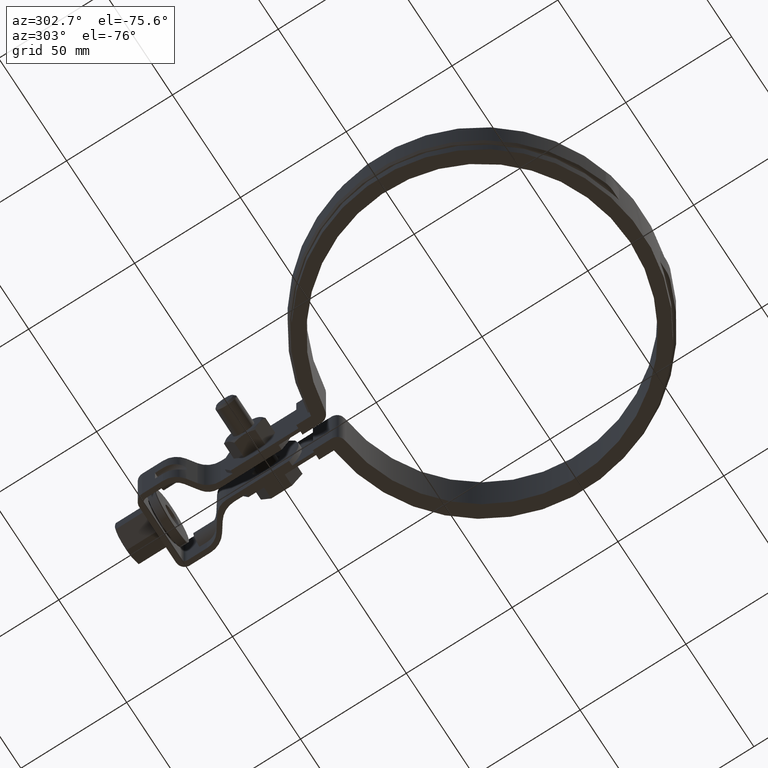
[diagram: clean part render]
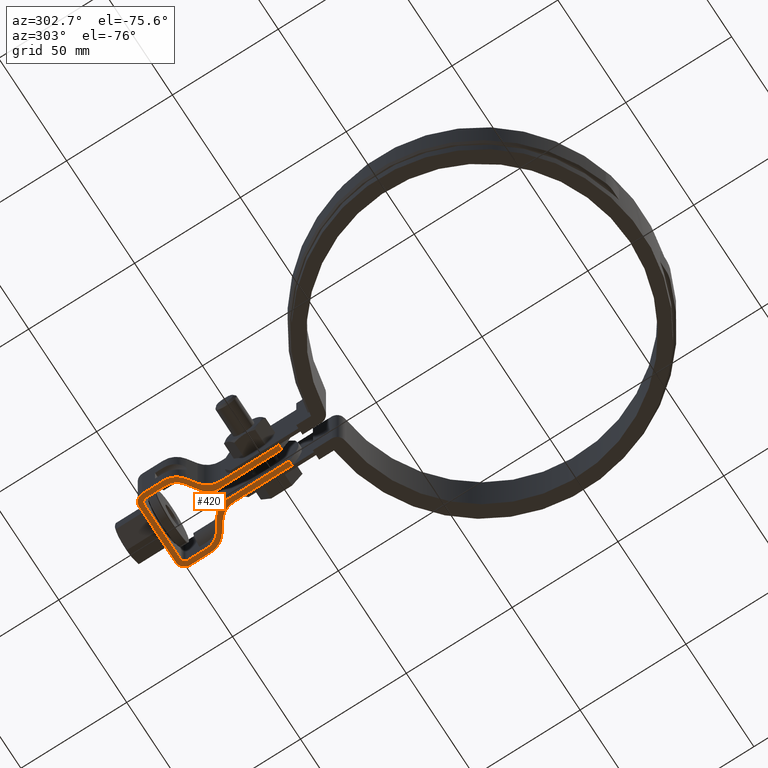
[diagram: same view with one face highlighted and labeled with its STEP entity id]
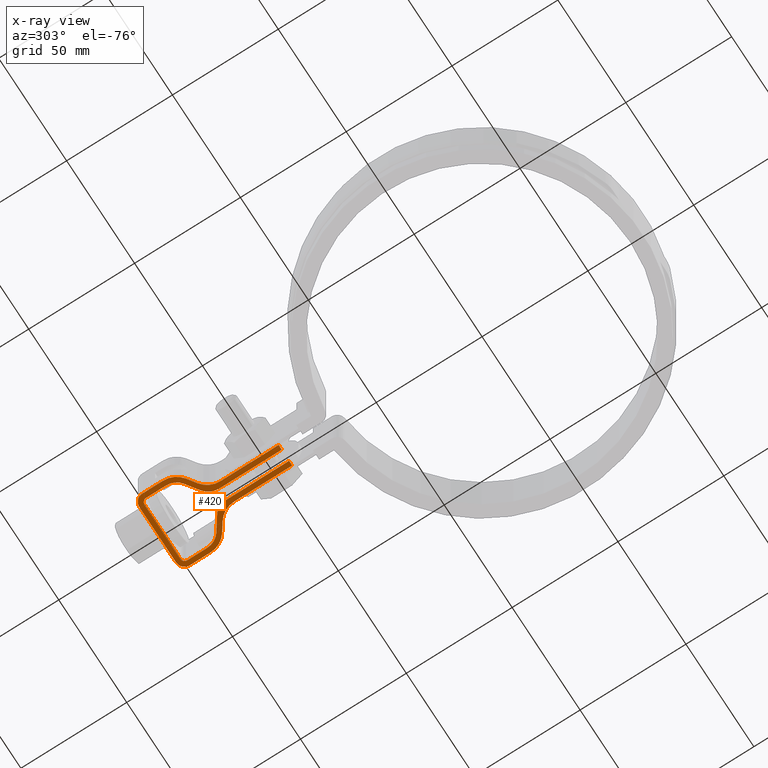
[diagram: x-ray of the same camera — body ghosted, the highlighted face saturated]
A machine part, auxiliary view. The second image highlights one B-rep face of the part: STEP entity #420.
The next image is the same camera in x-ray: the body ghosted, the highlighted face saturated — about 0% of this face is hidden behind the body in this view.
In plain terms, the highlighted planar face has unit normal (0, 0, 1).
Its self-contained STEP definition (entity closure, byte-faithful):
#420 = ADVANCED_FACE( '', ( #713 ), #714, .F. );
#713 = FACE_OUTER_BOUND( '', #1848, .T. );
#714 = PLANE( '', #1849 );
#1848 = EDGE_LOOP( '', ( #4420, #4421, #4422, #4423, #4424, #4425, #4426, #4427, #4428, #4429, #4430, #4431, #4432, #4433, #4434, #4435, #4436, #4437, #4438, #4439, #4440, #4441, #4442, #4443, #4444, #4445, #4446, #4447 ) );
#1849 = AXIS2_PLACEMENT_3D( '', #4448, #4449, #4450 );
#4420 = ORIENTED_EDGE( '', *, *, #5291, .F. );
#4421 = ORIENTED_EDGE( '', *, *, #5292, .F. );
#4422 = ORIENTED_EDGE( '', *, *, #5293, .F. );
#4423 = ORIENTED_EDGE( '', *, *, #5294, .F. );
#4424 = ORIENTED_EDGE( '', *, *, #5295, .F. );
#4425 = ORIENTED_EDGE( '', *, *, #5296, .F. );
#4426 = ORIENTED_EDGE( '', *, *, #5297, .F. );
#4427 = ORIENTED_EDGE( '', *, *, #5298, .F. );
#4428 = ORIENTED_EDGE( '', *, *, #5204, .F. );
#4429 = ORIENTED_EDGE( '', *, *, #5211, .F. );
#4430 = ORIENTED_EDGE( '', *, *, #5251, .F. );
#4431 = ORIENTED_EDGE( '', *, *, #5299, .F. );
#4432 = ORIENTED_EDGE( '', *, *, #5300, .F. );
#4433 = ORIENTED_EDGE( '', *, *, #5301, .F. );
#4434 = ORIENTED_EDGE( '', *, *, #5302, .F. );
#4435 = ORIENTED_EDGE( '', *, *, #5303, .F. );
#4436 = ORIENTED_EDGE( '', *, *, #5260, .F. );
#4437 = ORIENTED_EDGE( '', *, *, #5252, .F. );
#4438 = ORIENTED_EDGE( '', *, *, #5200, .F. );
#4439 = ORIENTED_EDGE( '', *, *, #5257, .F. );
#4440 = ORIENTED_EDGE( '', *, *, #5264, .F. );
#4441 = ORIENTED_EDGE( '', *, *, #5304, .F. );
#4442 = ORIENTED_EDGE( '', *, *, #5305, .F. );
#4443 = ORIENTED_EDGE( '', *, *, #5266, .F. );
#4444 = ORIENTED_EDGE( '', *, *, #5306, .F. );
#4445 = ORIENTED_EDGE( '', *, *, #5307, .F. );
#4446 = ORIENTED_EDGE( '', *, *, #5308, .F. );
#4447 = ORIENTED_EDGE( '', *, *, #5309, .F. );
#4448 = CARTESIAN_POINT( '', ( 13.5000000000000, 149.297141712794, -32.0000000000000 ) );
#4449 = DIRECTION( '', ( 0.000000000000000, 0.000000000000000, 1.00000000000000 ) );
#4450 = DIRECTION( '', ( 0.000000000000000, 1.00000000000000, 0.000000000000000 ) );
#5200 = EDGE_CURVE( '', #5825, #5827, #5828, .T. );
#5204 = EDGE_CURVE( '', #5833, #5835, #5836, .T. );
#5211 = EDGE_CURVE( '', #5847, #5833, #5849, .T. );
#5251 = EDGE_CURVE( '', #5915, #5847, #5917, .T. );
#5252 = EDGE_CURVE( '', #5827, #5918, #5919, .T. );
#5257 = EDGE_CURVE( '', #5925, #5825, #5927, .T. );
#5260 = EDGE_CURVE( '', #5918, #5931, #5932, .T. );
#5264 = EDGE_CURVE( '', #5936, #5925, #5938, .T. );
#5266 = EDGE_CURVE( '', #5939, #5941, #5942, .T. );
#5291 = EDGE_CURVE( '', #5983, #5984, #5985, .F. );
#5292 = EDGE_CURVE( '', #5986, #5983, #5987, .T. );
#5293 = EDGE_CURVE( '', #5988, #5986, #5989, .T. );
#5294 = EDGE_CURVE( '', #5990, #5988, #5991, .T. );
#5295 = EDGE_CURVE( '', #5992, #5990, #5993, .T. );
#5296 = EDGE_CURVE( '', #5994, #5992, #5995, .T. );
#5297 = EDGE_CURVE( '', #5996, #5994, #5997, .T. );
#5298 = EDGE_CURVE( '', #5835, #5996, #5998, .T. );
#5299 = EDGE_CURVE( '', #5999, #5915, #6000, .T. );
#5300 = EDGE_CURVE( '', #6001, #5999, #6002, .T. );
#5301 = EDGE_CURVE( '', #6003, #6001, #6004, .T. );
#5302 = EDGE_CURVE( '', #6005, #6003, #6006, .F. );
#5303 = EDGE_CURVE( '', #5931, #6005, #6007, .T. );
#5304 = EDGE_CURVE( '', #6008, #5936, #6009, .T. );
#5305 = EDGE_CURVE( '', #5941, #6008, #6010, .T. );
#5306 = EDGE_CURVE( '', #6011, #5939, #6012, .T. );
#5307 = EDGE_CURVE( '', #6013, #6011, #6014, .T. );
#5308 = EDGE_CURVE( '', #6015, #6013, #6016, .T. );
#5309 = EDGE_CURVE( '', #5984, #6015, #6017, .T. );
#5825 = VERTEX_POINT( '', #8530 );
#5827 = VERTEX_POINT( '', #8533 );
#5828 = CIRCLE( '', #8534, 8.00000000000000 );
#5833 = VERTEX_POINT( '', #8540 );
#5835 = VERTEX_POINT( '', #8543 );
#5836 = CIRCLE( '', #8544, 4.00000000000000 );
#5847 = VERTEX_POINT( '', #8560 );
#5849 = LINE( '', #8563, #8564 );
#5915 = VERTEX_POINT( '', #8769 );
#5917 = CIRCLE( '', #8772, 10.0000000000000 );
#5918 = VERTEX_POINT( '', #8773 );
#5919 = LINE( '', #8774, #8775 );
#5925 = VERTEX_POINT( '', #8784 );
#5927 = LINE( '', #8787, #8788 );
#5931 = VERTEX_POINT( '', #8793 );
#5932 = CIRCLE( '', #8794, 8.00000000000000 );
#5936 = VERTEX_POINT( '', #8799 );
#5938 = CIRCLE( '', #8802, 2.00000000000000 );
#5939 = VERTEX_POINT( '', #8803 );
#5941 = VERTEX_POINT( '', #8806 );
#5942 = LINE( '', #8807, #8808 );
#5983 = VERTEX_POINT( '', #8867 );
#5984 = VERTEX_POINT( '', #8868 );
#5985 = LINE( '', #8869, #8870 );
#5986 = VERTEX_POINT( '', #8871 );
#5987 = LINE( '', #8872, #8873 );
#5988 = VERTEX_POINT( '', #8874 );
#5989 = CIRCLE( '', #8875, 10.0000000000000 );
#5990 = VERTEX_POINT( '', #8876 );
#5991 = LINE( '', #8877, #8878 );
#5992 = VERTEX_POINT( '', #8879 );
#5993 = CIRCLE( '', #8880, 10.0000000000000 );
#5994 = VERTEX_POINT( '', #8881 );
#5995 = LINE( '', #8882, #8883 );
#5996 = VERTEX_POINT( '', #8884 );
#5997 = CIRCLE( '', #8885, 4.00000000000000 );
#5998 = LINE( '', #8886, #8887 );
#5999 = VERTEX_POINT( '', #8888 );
#6000 = LINE( '', #8889, #8890 );
#6001 = VERTEX_POINT( '', #8891 );
#6002 = CIRCLE( '', #8892, 10.0000000000000 );
#6003 = VERTEX_POINT( '', #8893 );
#6004 = LINE( '', #8894, #8895 );
#6005 = VERTEX_POINT( '', #8896 );
#6006 = LINE( '', #8897, #8898 );
#6007 = LINE( '', #8899, #8900 );
#6008 = VERTEX_POINT( '', #8901 );
#6009 = LINE( '', #8902, #8903 );
#6010 = CIRCLE( '', #8904, 2.00000000000000 );
#6011 = VERTEX_POINT( '', #8905 );
#6012 = CIRCLE( '', #8906, 8.00000000000000 );
#6013 = VERTEX_POINT( '', #8907 );
#6014 = LINE( '', #8908, #8909 );
#6015 = VERTEX_POINT( '', #8910 );
#6016 = CIRCLE( '', #8911, 8.00000000000000 );
#6017 = LINE( '', #8912, #8913 );
#8530 = CARTESIAN_POINT( '', ( 15.2000000000000, 139.658982333476, -32.0000000000000 ) );
#8533 = CARTESIAN_POINT( '', ( 11.7886114908084, 133.105765979165, -32.0000000000000 ) );
#8534 = AXIS2_PLACEMENT_3D( '', #9583, #9584, #9585 );
#8540 = CARTESIAN_POINT( '', ( 17.5000000000000, 149.297141712794, -32.0000000000000 ) );
#8543 = CARTESIAN_POINT( '', ( 13.5000000000000, 153.297141712794, -32.0000000000000 ) );
#8544 = AXIS2_PLACEMENT_3D( '', #9591, #9592, #9593 );
#8560 = CARTESIAN_POINT( '', ( 17.5000000000000, 139.502812218311, -32.0000000000000 ) );
#8563 = CARTESIAN_POINT( '', ( 17.5000000000000, 139.502812218311, -32.0000000000000 ) );
#8564 = VECTOR( '', #9600, 1000.00000000000 );
#8769 = CARTESIAN_POINT( '', ( 13.2357643635105, 131.311291775421, -32.0000000000000 ) );
#8772 = AXIS2_PLACEMENT_3D( '', #9663, #9664, #9665 );
#8773 = CARTESIAN_POINT( '', ( 6.11138850919165, 129.130531651339, -32.0000000000000 ) );
#8774 = CARTESIAN_POINT( '', ( 11.7886114908084, 133.105765979165, -32.0000000000000 ) );
#8775 = VECTOR( '', #9666, 1000.00000000000 );
#8784 = CARTESIAN_POINT( '', ( 15.2000000000000, 148.997141712794, -32.0000000000000 ) );
#8787 = CARTESIAN_POINT( '', ( 15.2000000000000, 148.997141712794, -32.0000000000000 ) );
#8788 = VECTOR( '', #9671, 1000.00000000000 );
#8793 = CARTESIAN_POINT( '', ( 2.70000000000002, 122.577315297027, -32.0000000000000 ) );
#8794 = AXIS2_PLACEMENT_3D( '', #9676, #9677, #9678 );
#8799 = CARTESIAN_POINT( '', ( 13.2000000000000, 150.997141712794, -32.0000000000000 ) );
#8802 = AXIS2_PLACEMENT_3D( '', #9684, #9685, #9686 );
#8803 = CARTESIAN_POINT( '', ( -15.2000000000000, 139.658982333477, -32.0000000000000 ) );
#8806 = CARTESIAN_POINT( '', ( -15.2000000000000, 148.997141712794, -32.0000000000000 ) );
#8807 = CARTESIAN_POINT( '', ( -15.2000000000000, 139.658982333476, -32.0000000000000 ) );
#8808 = VECTOR( '', #9688, 1000.00000000000 );
#8867 = CARTESIAN_POINT( '', ( -5.00000000000000, 92.9199866318945, -32.0000000000000 ) );
#8868 = CARTESIAN_POINT( '', ( -2.70000000000000, 92.9199866318945, -32.0000000000000 ) );
#8869 = CARTESIAN_POINT( '', ( 81.1487655465077, 92.9199866318945, -32.0000000000000 ) );
#8870 = VECTOR( '', #9725, 1000.00000000000 );
#8871 = CARTESIAN_POINT( '', ( -4.99999999999996, 120.338876979655, -32.0000000000000 ) );
#8872 = CARTESIAN_POINT( '', ( -4.99999999999999, 120.338876979655, -32.0000000000000 ) );
#8873 = VECTOR( '', #9726, 1000.00000000000 );
#8874 = CARTESIAN_POINT( '', ( -9.26423563648953, 128.530397422545, -32.0000000000000 ) );
#8875 = AXIS2_PLACEMENT_3D( '', #9727, #9728, #9729 );
#8876 = CARTESIAN_POINT( '', ( -13.2357643635105, 131.311291775421, -32.0000000000000 ) );
#8877 = CARTESIAN_POINT( '', ( -13.2357643635105, 131.311291775421, -32.0000000000000 ) );
#8878 = VECTOR( '', #9730, 1000.00000000000 );
#8879 = CARTESIAN_POINT( '', ( -17.5000000000000, 139.502812218311, -32.0000000000000 ) );
#8880 = AXIS2_PLACEMENT_3D( '', #9731, #9732, #9733 );
#8881 = CARTESIAN_POINT( '', ( -17.5000000000000, 149.297141712794, -32.0000000000000 ) );
#8882 = CARTESIAN_POINT( '', ( -17.5000000000000, 149.297141712794, -32.0000000000000 ) );
#8883 = VECTOR( '', #9734, 1000.00000000000 );
#8884 = CARTESIAN_POINT( '', ( -13.5000000000000, 153.297141712794, -32.0000000000000 ) );
#8885 = AXIS2_PLACEMENT_3D( '', #9735, #9736, #9737 );
#8886 = CARTESIAN_POINT( '', ( 13.5000000000000, 153.297141712794, -32.0000000000000 ) );
#8887 = VECTOR( '', #9738, 1000.00000000000 );
#8888 = CARTESIAN_POINT( '', ( 9.26423563648955, 128.530397422545, -32.0000000000000 ) );
#8889 = CARTESIAN_POINT( '', ( 9.26423563648953, 128.530397422545, -32.0000000000000 ) );
#8890 = VECTOR( '', #9739, 1000.00000000000 );
#8891 = CARTESIAN_POINT( '', ( 5.00000000000001, 120.338876979655, -32.0000000000000 ) );
#8892 = AXIS2_PLACEMENT_3D( '', #9740, #9741, #9742 );
#8893 = CARTESIAN_POINT( '', ( 5.00000000000001, 92.9199866318945, -32.0000000000000 ) );
#8894 = CARTESIAN_POINT( '', ( 5.00000000000000, 88.2971417127935, -32.0000000000000 ) );
#8895 = VECTOR( '', #9743, 1000.00000000000 );
#8896 = CARTESIAN_POINT( '', ( 2.70000000000000, 92.9199866318945, -32.0000000000000 ) );
#8897 = CARTESIAN_POINT( '', ( 81.1487655465077, 92.9199866318945, -32.0000000000000 ) );
#8898 = VECTOR( '', #9744, 1000.00000000000 );
#8899 = CARTESIAN_POINT( '', ( 2.70000000000001, 122.577315297027, -32.0000000000000 ) );
#8900 = VECTOR( '', #9745, 1000.00000000000 );
#8901 = CARTESIAN_POINT( '', ( -13.2000000000000, 150.997141712794, -32.0000000000000 ) );
#8902 = CARTESIAN_POINT( '', ( -13.2000000000000, 150.997141712794, -32.0000000000000 ) );
#8903 = VECTOR( '', #9746, 1000.00000000000 );
#8904 = AXIS2_PLACEMENT_3D( '', #9747, #9748, #9749 );
#8905 = CARTESIAN_POINT( '', ( -11.7886114908084, 133.105765979165, -32.0000000000000 ) );
#8906 = AXIS2_PLACEMENT_3D( '', #9750, #9751, #9752 );
#8907 = CARTESIAN_POINT( '', ( -6.11138850919162, 129.130531651339, -32.0000000000000 ) );
#8908 = CARTESIAN_POINT( '', ( -6.11138850919165, 129.130531651339, -32.0000000000000 ) );
#8909 = VECTOR( '', #9753, 1000.00000000000 );
#8910 = CARTESIAN_POINT( '', ( -2.69999999999999, 122.577315297027, -32.0000000000000 ) );
#8911 = AXIS2_PLACEMENT_3D( '', #9754, #9755, #9756 );
#8912 = CARTESIAN_POINT( '', ( -2.70000000000000, 88.2971417127935, -32.0000000000000 ) );
#8913 = VECTOR( '', #9757, 1000.00000000000 );
#9583 = CARTESIAN_POINT( '', ( 7.20000000000001, 139.658982333476, -32.0000000000000 ) );
#9584 = DIRECTION( '', ( 0.000000000000000, 0.000000000000000, -1.00000000000000 ) );
#9585 = DIRECTION( '', ( 1.00000000000000, 0.000000000000000, 0.000000000000000 ) );
#9591 = CARTESIAN_POINT( '', ( 13.5000000000000, 149.297141712794, -32.0000000000000 ) );
#9592 = DIRECTION( '', ( 0.000000000000000, 0.000000000000000, 1.00000000000000 ) );
#9593 = DIRECTION( '', ( 1.00000000000000, -2.16840434497101E-016, 0.000000000000000 ) );
#9600 = DIRECTION( '', ( 6.93889390390723E-017, 1.00000000000000, 0.000000000000000 ) );
#9663 = CARTESIAN_POINT( '', ( 7.50000000000001, 139.502812218311, -32.0000000000000 ) );
#9664 = DIRECTION( '', ( 0.000000000000000, 0.000000000000000, 1.00000000000000 ) );
#9665 = DIRECTION( '', ( 0.573576436351046, -0.819152044288992, 0.000000000000000 ) );
#9666 = DIRECTION( '', ( -0.819152044288992, -0.573576436351046, 0.000000000000000 ) );
#9671 = DIRECTION( '', ( -6.07153216591882E-017, -1.00000000000000, 0.000000000000000 ) );
#9676 = CARTESIAN_POINT( '', ( 10.7000000000000, 122.577315297027, -32.0000000000000 ) );
#9677 = DIRECTION( '', ( 0.000000000000000, 0.000000000000000, 1.00000000000000 ) );
#9678 = DIRECTION( '', ( -0.573576436351046, 0.819152044288992, 0.000000000000000 ) );
#9684 = CARTESIAN_POINT( '', ( 13.2000000000000, 148.997141712794, -32.0000000000000 ) );
#9685 = DIRECTION( '', ( 0.000000000000000, 0.000000000000000, -1.00000000000000 ) );
#9686 = DIRECTION( '', ( 0.000000000000000, 1.00000000000000, 0.000000000000000 ) );
#9688 = DIRECTION( '', ( 6.07153216591882E-017, 1.00000000000000, 0.000000000000000 ) );
#9725 = DIRECTION( '', ( -1.00000000000000, 0.000000000000000, -1.83690953073357E-016 ) );
#9726 = DIRECTION( '', ( -6.07153216591882E-017, -1.00000000000000, 0.000000000000000 ) );
#9727 = CARTESIAN_POINT( '', ( -15.0000000000000, 120.338876979655, -32.0000000000000 ) );
#9728 = DIRECTION( '', ( 0.000000000000000, 0.000000000000000, -1.00000000000000 ) );
#9729 = DIRECTION( '', ( 0.573576436351046, 0.819152044288992, 0.000000000000000 ) );
#9730 = DIRECTION( '', ( 0.819152044288992, -0.573576436351046, 0.000000000000000 ) );
#9731 = CARTESIAN_POINT( '', ( -7.49999999999999, 139.502812218311, -32.0000000000000 ) );
#9732 = DIRECTION( '', ( 0.000000000000000, 0.000000000000000, 1.00000000000000 ) );
#9733 = DIRECTION( '', ( -1.00000000000000, -1.73472347597681E-016, 0.000000000000000 ) );
#9734 = DIRECTION( '', ( -6.93889390390723E-017, -1.00000000000000, 0.000000000000000 ) );
#9735 = CARTESIAN_POINT( '', ( -13.5000000000000, 149.297141712794, -32.0000000000000 ) );
#9736 = DIRECTION( '', ( 0.000000000000000, 0.000000000000000, 1.00000000000000 ) );
#9737 = DIRECTION( '', ( 0.000000000000000, 1.00000000000000, 0.000000000000000 ) );
#9738 = DIRECTION( '', ( -1.00000000000000, 0.000000000000000, 0.000000000000000 ) );
#9739 = DIRECTION( '', ( 0.819152044288992, 0.573576436351046, 0.000000000000000 ) );
#9740 = CARTESIAN_POINT( '', ( 15.0000000000000, 120.338876979655, -32.0000000000000 ) );
#9741 = DIRECTION( '', ( 0.000000000000000, 0.000000000000000, -1.00000000000000 ) );
#9742 = DIRECTION( '', ( -1.00000000000000, 0.000000000000000, 0.000000000000000 ) );
#9743 = DIRECTION( '', ( 6.07153216591882E-017, 1.00000000000000, 0.000000000000000 ) );
#9744 = DIRECTION( '', ( -1.00000000000000, 0.000000000000000, -1.83690953073357E-016 ) );
#9745 = DIRECTION( '', ( -6.07153216591882E-017, -1.00000000000000, 0.000000000000000 ) );
#9746 = DIRECTION( '', ( 1.00000000000000, 0.000000000000000, 0.000000000000000 ) );
#9747 = CARTESIAN_POINT( '', ( -13.2000000000000, 148.997141712794, -32.0000000000000 ) );
#9748 = DIRECTION( '', ( 0.000000000000000, 0.000000000000000, -1.00000000000000 ) );
#9749 = DIRECTION( '', ( -1.00000000000000, 0.000000000000000, 0.000000000000000 ) );
#9750 = CARTESIAN_POINT( '', ( -7.20000000000001, 139.658982333476, -32.0000000000000 ) );
#9751 = DIRECTION( '', ( 0.000000000000000, 0.000000000000000, -1.00000000000000 ) );
#9752 = DIRECTION( '', ( -0.573576436351046, -0.819152044288992, 0.000000000000000 ) );
#9753 = DIRECTION( '', ( -0.819152044288992, 0.573576436351046, 0.000000000000000 ) );
#9754 = CARTESIAN_POINT( '', ( -10.7000000000000, 122.577315297027, -32.0000000000000 ) );
#9755 = DIRECTION( '', ( 0.000000000000000, 0.000000000000000, 1.00000000000000 ) );
#9756 = DIRECTION( '', ( 1.00000000000000, 0.000000000000000, 0.000000000000000 ) );
#9757 = DIRECTION( '', ( 6.07153216591882E-017, 1.00000000000000, 0.000000000000000 ) );